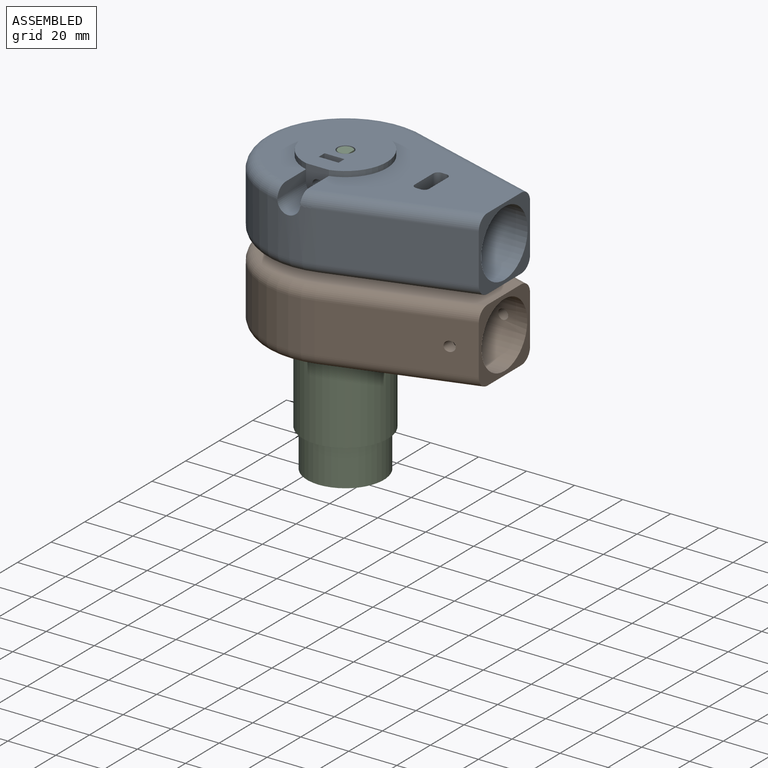
[diagram: assembled view]
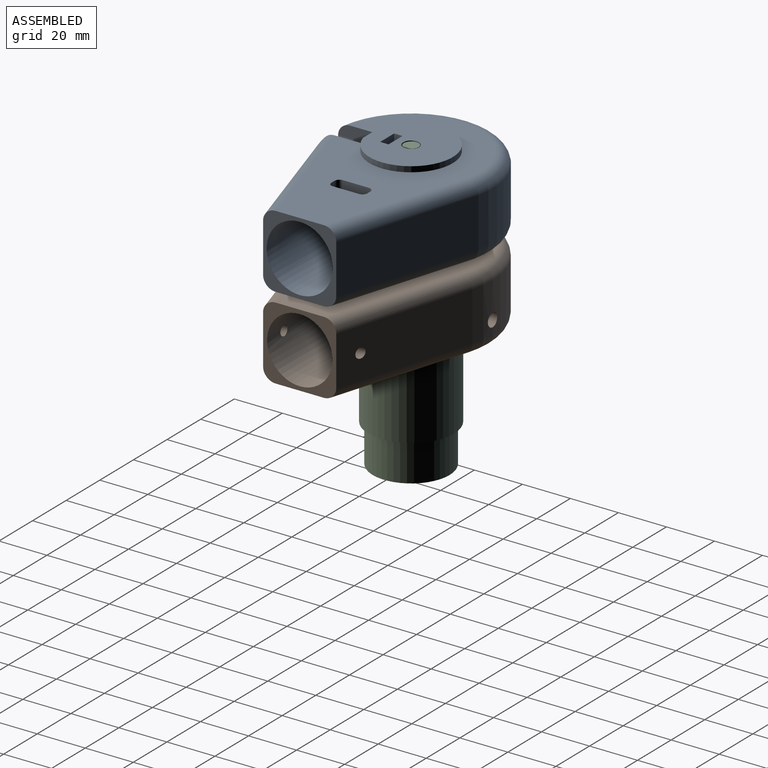
[diagram: assembled view, second angle]
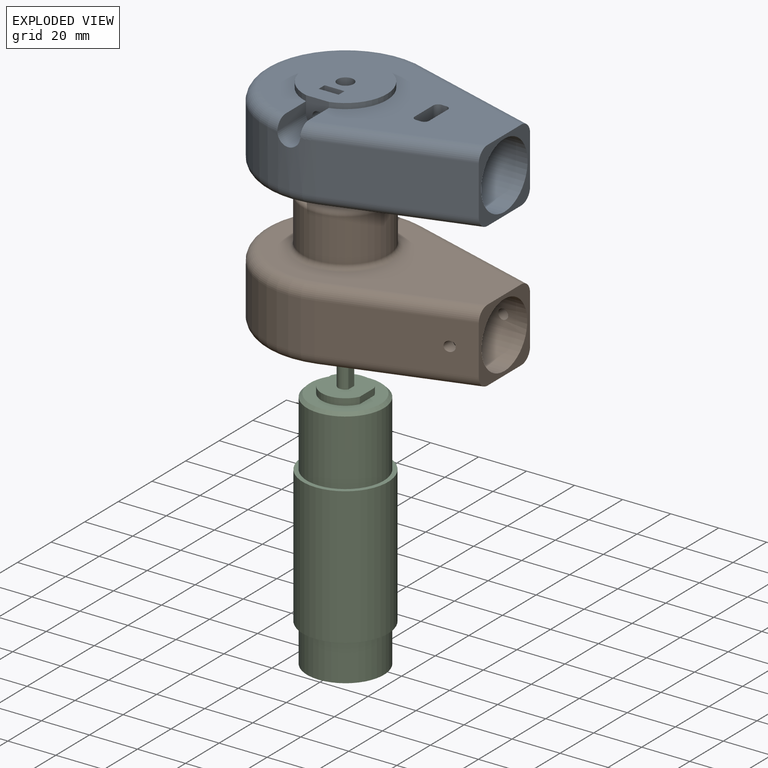
[diagram: exploded view]
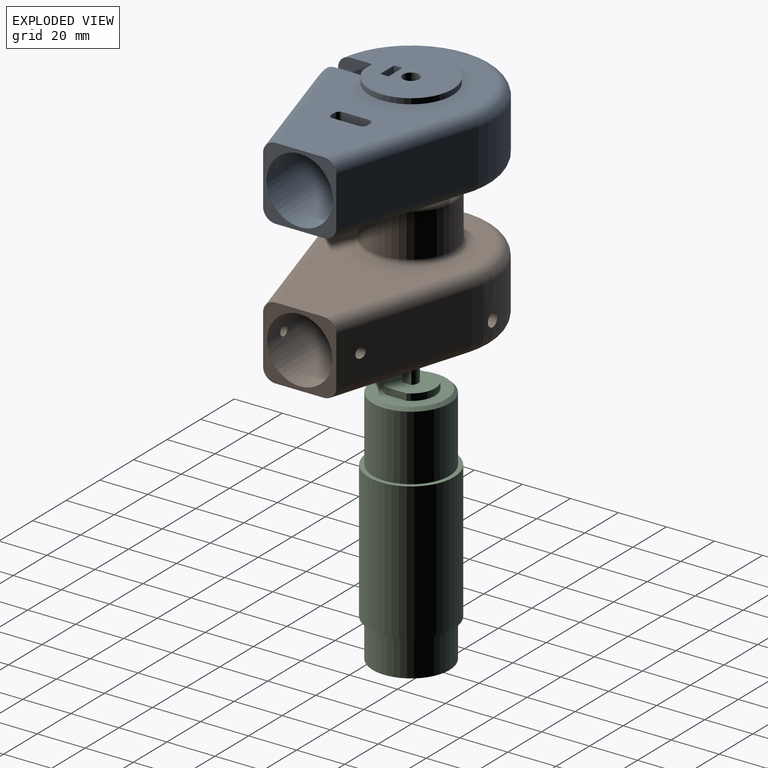
[diagram: exploded view, second angle]
ASSEMBLY  parts=3 mates=2
PART A: 41 faces, bbox 104.6x73.8x32.8 mm
  f0: plane 95.31x57.78mm, normal (0,0,1), area 2852.6mm2, adj f1,f2,f5,f15,f18,f19,f20,f21
  f1: torus R=29.08mm, axis (0,0,-1), area 40.9mm2, adj f0,f6,f7,f37,f38
  f2: torus R=29.08mm, axis (0,0,-1), area 852.4mm2, adj f0,f6,f7,f36,f39
  f3: plane 34.7x34.03mm, normal (0,0,1), area 875.9mm2, adj f5,f8,f28,f29,f30,f31,f40
  f4: cylinder r=2.1mm len=6.69mm, axis (0,1,0), area 88.2mm2, adj f31,f40
  f5: cylinder r=17.35mm len=34.7mm, axis (0,0,1), area 226.7mm2, adj f0,f3,f40
  f6: cylinder r=4.75mm len=17.4mm, axis (0,1,0), area 257.1mm2, adj f1,f2,f7,f38,f39,f40
  f7: cylinder r=34.08mm len=68.17mm, axis (0,0,1), area 2633.1mm2, adj f1,f2,f6,f16,f17,f34
  f8: cylinder r=3.4mm len=14.43mm, axis (0,0,1), area 293.6mm2, adj f3,f11,f27
  f9: plane 27.58x25.36mm, normal (1,0,0), area 254.8mm2, adj f10,f21,f25,f26
  f10: cylinder r=13.79mm len=30.48mm, axis (1,0,0), area 2595.2mm2, adj f9,f15,f18,f19,f20,f21,f25
  f11: plane 31.8x31.8mm, normal (0,0,-1), area 757.9mm2, adj f8,f14
  f12: plane 95.31x58.17mm, normal (0,0,-1), area 2945mm2, adj f13,f15,f33,f34,f35
  f13: cylinder r=18.3mm len=36.6mm, axis (0,0,1), area 1831.8mm2, adj f12,f14
  f14: torus R=15.9mm, axis (0,0,1), area 412.8mm2, adj f11,f13
  f15: plane 30.48x30.48mm, normal (1,0,0), area 309.2mm2, adj f0,f10,f12,f16,f17,f33,f35,f36
  f16: plane 55.87x20.48mm, normal (0.29,-0.96,0), area 1197.1mm2, adj f7,f15,f33,f37
  f17: plane 53.97x20.48mm, normal (0.29,0.96,0), area 1156.5mm2, adj f7,f15,f35,f36
  f18: cylinder r=2mm len=3.67mm, axis (0,0,1), area 10.2mm2, adj f0,f10,f19,f25
  f19: plane 11x2.6mm, normal (-1,0,0), area 20.1mm2, adj f0,f10,f18,f20
  f20: cylinder r=2mm len=3.67mm, axis (0,0,1), area 10.2mm2, adj f0,f10,f19,f21
  f21: plane 25x2mm, normal (0,-1,0), area 28.7mm2, adj f0,f9,f10,f20,f22,f26
  f22: cylinder r=2mm len=25mm, axis (0,0,1), area 78.5mm2, adj f0,f21,f23,f26
  f23: plane 25x11mm, normal (1,0,0), area 275mm2, adj f0,f22,f24,f26
  f24: cylinder r=2mm len=25mm, axis (0,0,1), area 78.5mm2, adj f0,f23,f25,f26
  f25: plane 25x2mm, normal (0,1,0), area 28.7mm2, adj f0,f9,f10,f18,f24,f26
  f26: plane 15x3mm, normal (0,0,1), area 43.3mm2, adj f9,f21,f22,f23,f24,f25
  f27: cylinder r=2.1mm len=4.2mm, axis (0,1,0), area 45.6mm2, adj f8,f30
  f28: plane 12.98x3.5mm, normal (-1,0,0), area 45.4mm2, adj f3,f30,f31,f32
  f29: plane 12.98x3.5mm, normal (1,0,0), area 45.4mm2, adj f3,f30,f31,f32
  f30: plane 12.98x8.31mm, normal (0,-1,0), area 94mm2, adj f3,f27,f28,f29,f32
  f31: plane 12.98x8.31mm, normal (0,1,0), area 94mm2, adj f3,f4,f28,f29,f32
  f32: plane 8.31x3.5mm, normal (0,0,1), area 29.1mm2, adj f28,f29,f30,f31
  f33: cylinder r=5mm len=58.83mm, axis (0.96,0.29,0), area 463.6mm2, adj f12,f15,f16,f34
  f34: torus R=29.08mm, axis (0,0,1), area 968.2mm2, adj f7,f12,f33,f35
  f35: cylinder r=5mm len=57.09mm, axis (-0.96,0.29,0), area 448.6mm2, adj f12,f15,f17,f34
  f36: cylinder r=5mm len=57.09mm, axis (0.96,-0.29,0), area 448.6mm2, adj f0,f2,f15,f17
  f37: cylinder r=5mm len=58.83mm, axis (-0.96,-0.29,0), area 463.6mm2, adj f0,f1,f15,f16
  f38: plane 17.06x4.66mm, normal (-1,0,0), area 73.9mm2, adj f0,f1,f6,f40
  f39: plane 17.06x4.66mm, normal (1,0,0), area 73.9mm2, adj f0,f2,f6,f40
  f40: plane 11.68x9.5mm, normal (0,-1,0), area 87.4mm2, adj f3,f4,f5,f6,f38,f39
PART B: 45 faces, bbox 74x104.8x52.6 mm
  f0: plane 95.27x58.08mm, normal (0,0,-1), area 2716.2mm2, adj f16,f19,f20,f21,f22,f23,f24,f25
  f1: cylinder r=2.78mm len=5.56mm, axis (1,0,0), area 75.3mm2, adj f13,f40
  f2: cylinder r=13.59mm len=30.48mm, axis (0,1,0), area 2529mm2, adj f16,f18,f19,f20,f21,f22,f23,f38
  f3: cylinder r=34.04mm len=68.08mm, axis (0,0,1), area 2582.2mm2, adj f15,f17,f30,f32,f35
  f4: cylinder r=17.9mm len=35.8mm, axis (0,0,1), area 2005.3mm2, adj f28,f29
  f5: plane 31.2x31.2mm, normal (0,0,-1), area 436.7mm2, adj f6,f7,f9,f10,f11
  f6: plane 8.9x2.8mm, normal (1,0,0), area 24.9mm2, adj f5,f7,f8,f9
  f7: cylinder r=10.4mm len=18.8mm, axis (0,0,1), area 65.7mm2, adj f5,f6,f8,f10
  f8: plane 31.8x31.8mm, normal (0,0,1), area 466.4mm2, adj f6,f7,f9,f10,f29
  f9: cylinder r=10.4mm len=18.8mm, axis (0,0,1), area 65.7mm2, adj f5,f6,f8,f10
  f10: plane 8.9x2.8mm, normal (-1,0,0), area 24.9mm2, adj f5,f7,f8,f9
  f11: cylinder r=15.6mm len=31.2mm, axis (0,0,1), area 2762.1mm2, adj f5,f12
  f12: plane 36.45x36.45mm, normal (0,0,-1), area 279.2mm2, adj f11,f13
  f13: cylinder r=18.23mm len=36.45mm, axis (0,0,1), area 2303.8mm2, adj f1,f12,f37
  f14: plane 95.27x58.08mm, normal (0,0,1), area 2748.3mm2, adj f16,f28,f31,f32,f33
  f15: plane 56.49x20.75mm, normal (-0.96,0.29,0), area 1190.1mm2, adj f3,f16,f33,f36,f38
  f16: plane 30.48x30.48mm, normal (0,1,0), area 326.4mm2, adj f0,f2,f14,f15,f17,f31,f33,f34
  f17: plane 56.49x20.75mm, normal (0.96,0.29,0), area 1190.1mm2, adj f3,f16,f31,f34,f39
  f18: plane 27.18x24.92mm, normal (0,1,0), area 240.8mm2, adj f2,f22,f23,f27
  f19: cylinder r=2mm len=3.91mm, axis (0,0,-1), area 10.9mm2, adj f0,f2,f20,f22
  f20: plane 11x2.81mm, normal (0,-1,0), area 22.3mm2, adj f0,f2,f19,f21
  f21: cylinder r=2mm len=3.91mm, axis (0,0,-1), area 10.9mm2, adj f0,f2,f20,f23
  f22: plane 25x2mm, normal (1,0,0), area 28.9mm2, adj f0,f2,f18,f19,f25,f27
  f23: plane 25x2mm, normal (-1,0,0), area 28.9mm2, adj f0,f2,f18,f21,f26,f27
  f24: plane 25x11mm, normal (0,1,0), area 275mm2, adj f0,f25,f26,f27
  f25: cylinder r=2mm len=25mm, axis (0,0,-1), area 78.5mm2, adj f0,f22,f24,f27
  f26: cylinder r=2mm len=25mm, axis (0,0,-1), area 78.5mm2, adj f0,f23,f24,f27
  f27: plane 15x3mm, normal (0,0,-1), area 43.3mm2, adj f18,f22,f23,f24,f25,f26
  f28: torus R=19.9mm, axis (0,0,-1), area 367.7mm2, adj f4,f14
  f29: torus R=15.9mm, axis (0,0,1), area 339mm2, adj f4,f8
  f30: cylinder r=2.78mm len=8.21mm, axis (1,0,0), area 143.3mm2, adj f3,f41
  f31: cylinder r=5mm len=59.16mm, axis (0.29,-0.96,0), area 466.4mm2, adj f14,f16,f17,f32
  f32: torus R=29.04mm, axis (0,0,-1), area 946.2mm2, adj f3,f14,f31,f33
  f33: cylinder r=5mm len=59.16mm, axis (0.29,0.96,0), area 466.4mm2, adj f14,f15,f16,f32
  f34: cylinder r=5mm len=59.16mm, axis (0.29,-0.96,0), area 466.4mm2, adj f0,f16,f17,f35
  f35: torus R=29.04mm, axis (0,0,-1), area 946.2mm2, adj f0,f3,f34,f36
  f36: cylinder r=5mm len=59.16mm, axis (0.29,0.96,0), area 466.4mm2, adj f0,f15,f16,f35
  f37: cone r=19.23mm half-angle=45deg, axis (0,0,-1), area 166.4mm2, adj f0,f13
  f38: cylinder r=2.1mm len=5.54mm, axis (-1,0,0), area 63.2mm2, adj f2,f15
  f39: cylinder r=2.1mm len=5.54mm, axis (-1,0,0), area 63.7mm2, adj f2,f17
  f40: plane 13.8x8.31mm, normal (-1,0,0), area 90.4mm2, adj f0,f1,f42,f43,f44
  f41: plane 13.8x8.31mm, normal (1,0,0), area 90.4mm2, adj f0,f30,f42,f43,f44
  f42: plane 13.8x3.4mm, normal (0,1,0), area 46.9mm2, adj f0,f40,f41,f44
  f43: plane 13.8x3.4mm, normal (0,-1,0), area 46.9mm2, adj f0,f40,f41,f44
  f44: plane 8.31x3.4mm, normal (0,0,-1), area 28.3mm2, adj f40,f41,f42,f43
PART C: 16 faces, bbox 35.6x35.6x119.9 mm
  f0: plane 20x18mm, normal (0,0,1), area 275.5mm2, adj f7,f8,f9,f10,f11,f12
  f1: plane 29.44x29.44mm, normal (0,0,1), area 378.3mm2, adj f6,f7,f8,f9,f10
  f2: cylinder r=17.79mm len=57.1mm, axis (0,0,-1), area 6380.7mm2, adj f3,f4
  f3: plane 35.57x35.57mm, normal (0,0,1), area 189.5mm2, adj f2,f5
  f4: plane 35.57x35.57mm, normal (0,0,-1), area 189.5mm2, adj f2,f14
  f5: cylinder r=16mm len=32mm, axis (0,0,-1), area 2744.5mm2, adj f3,f6
  f6: cone r=14.72mm half-angle=45deg, axis (0,0,-1), area 174.7mm2, adj f1,f5
  f7: plane 8.72x2.8mm, normal (0,-1,0), area 24.4mm2, adj f0,f1,f8,f10
  f8: cylinder r=10mm len=18mm, axis (0,0,-1), area 62.7mm2, adj f0,f1,f7,f9
  f9: plane 8.72x2.8mm, normal (0,1,0), area 24.4mm2, adj f0,f1,f8,f10
  f10: cylinder r=10mm len=18mm, axis (0,0,-1), area 62.7mm2, adj f0,f1,f7,f9
  f11: plane 15.43x3.52mm, normal (0,1,0), area 54.3mm2, adj f0,f12,f13
  f12: cylinder r=3mm len=15.43mm, axis (0,0,-1), area 232.8mm2, adj f0,f11,f13
  f13: plane 6x5.43mm, normal (0,0,1), area 26.9mm2, adj f11,f12
  f14: cylinder r=16mm len=32mm, axis (0,0,1), area 1608.5mm2, adj f4,f15
  f15: plane 32x32mm, normal (0,0,-1), area 804.2mm2, adj f14
PLACE A t=(21.62,12.85,2.03)mm
PLACE B rot(axis=(0,0,-1),90deg) t=(21.62,12.81,0)mm
PLACE C rot(axis=(0,0,-1),90deg) t=(21.62,12.85,-89.08)mm
MATE fastened C.f8 <-> B.f7  axis (0,0,-1) through (21.62,12.85,-2)mm
MATE revolute A.f1 <-> B.f4  axis (0,0,1) through (21.62,12.85,-9.83)mm
